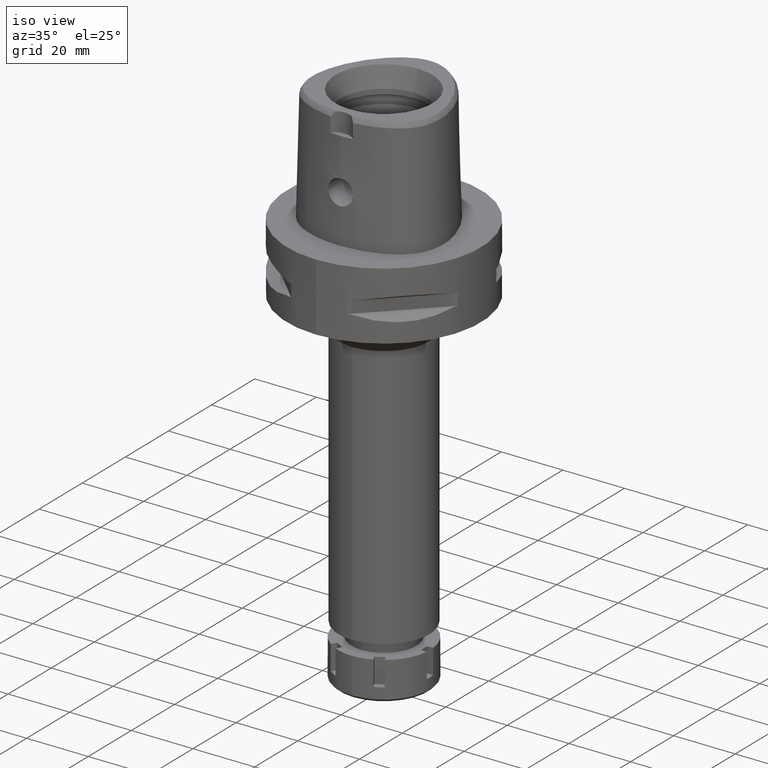
[diagram: clean part render]
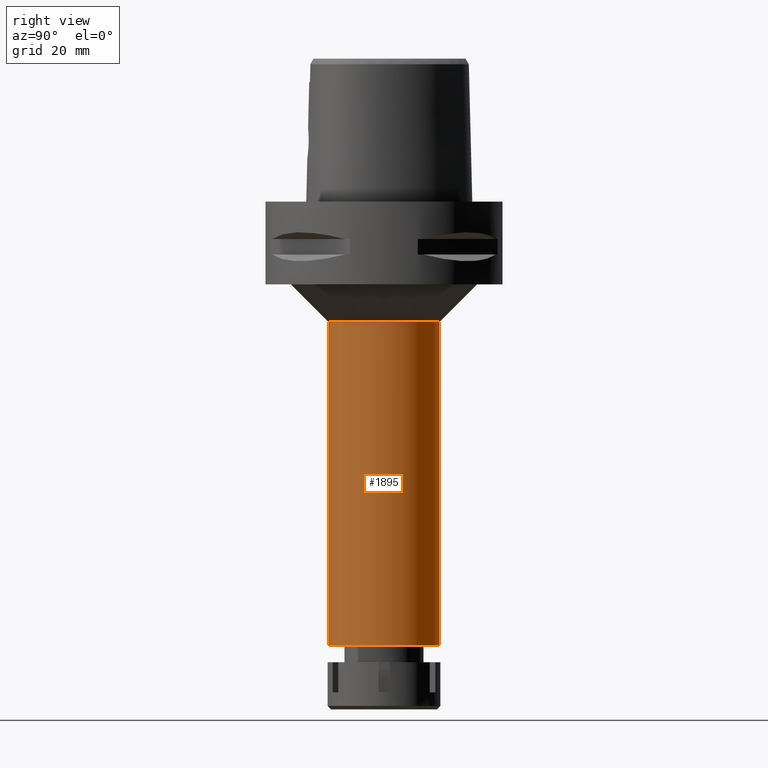
[diagram: tour spotlight — one face highlighted and labeled with its STEP entity id]
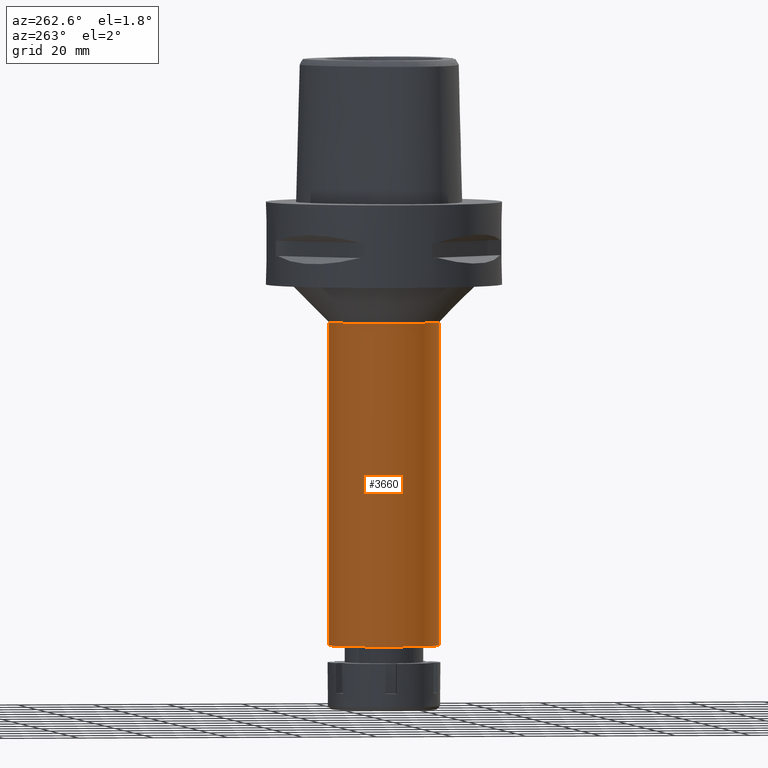
[diagram: tour spotlight — one face highlighted and labeled with its STEP entity id]
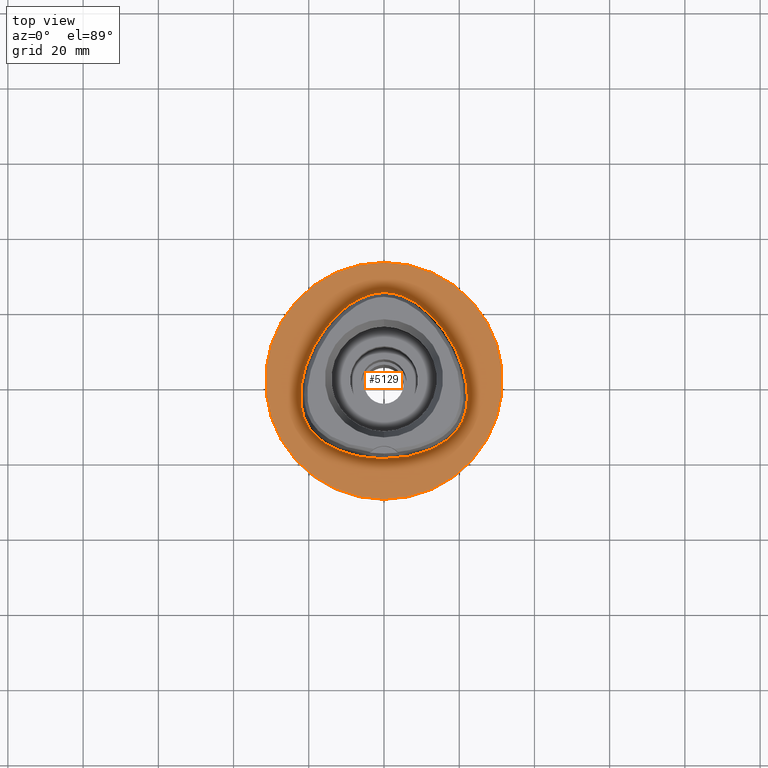
[diagram: tour spotlight — one face highlighted and labeled with its STEP entity id]
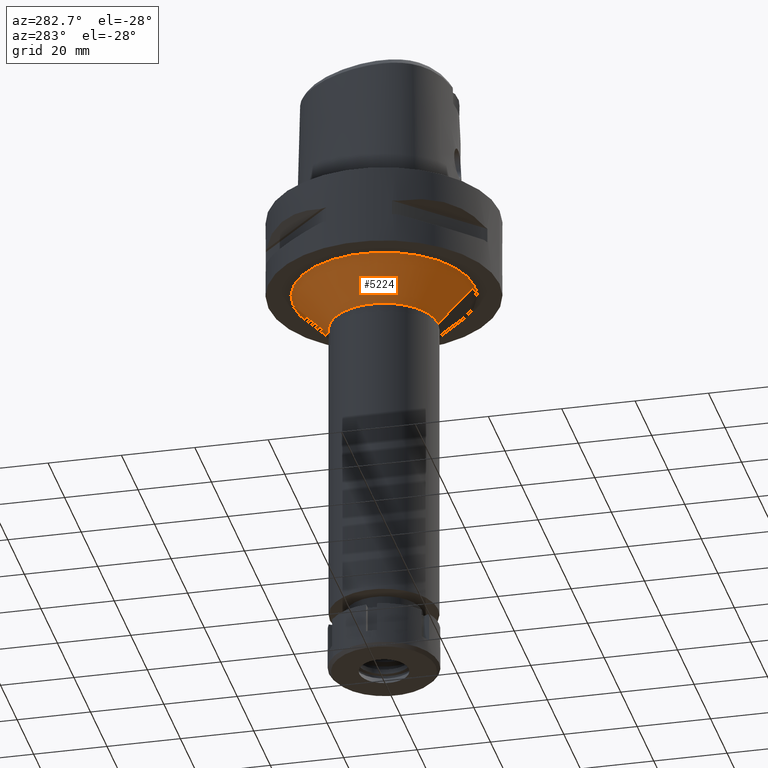
[diagram: tour spotlight — one face highlighted and labeled with its STEP entity id]
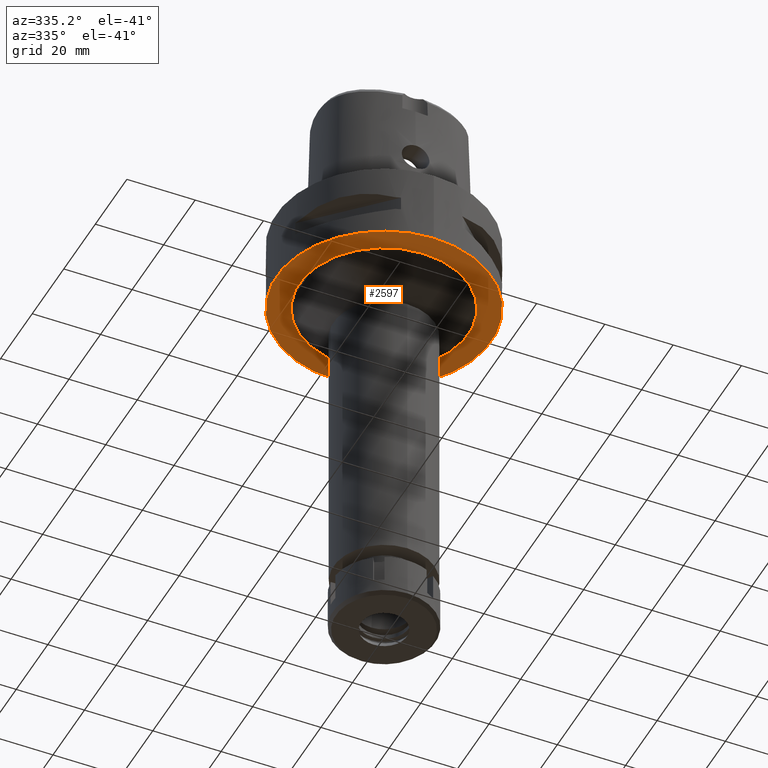
[diagram: tour spotlight — one face highlighted and labeled with its STEP entity id]
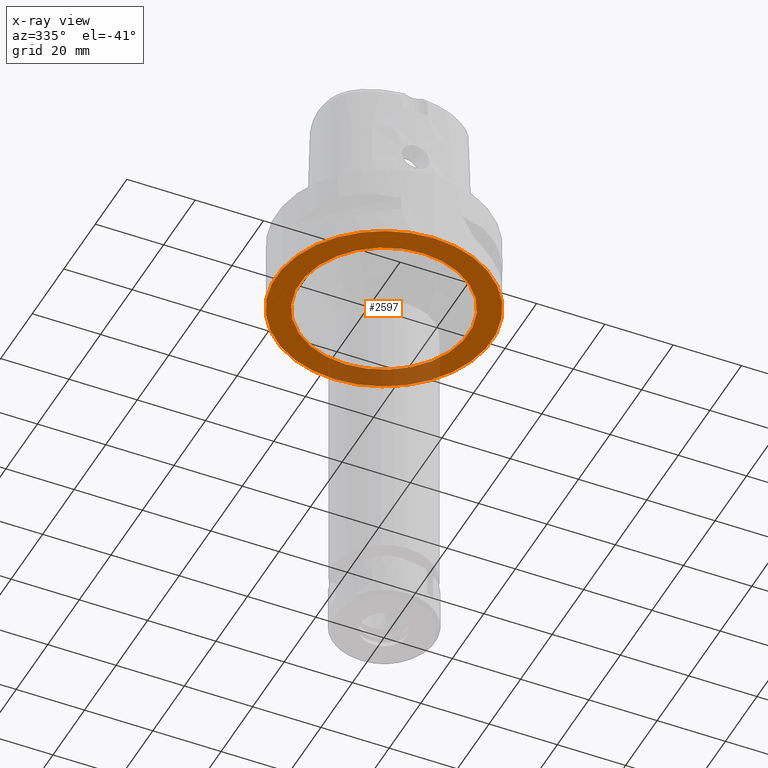
[diagram: x-ray of the same camera — body ghosted, this tour face saturated]
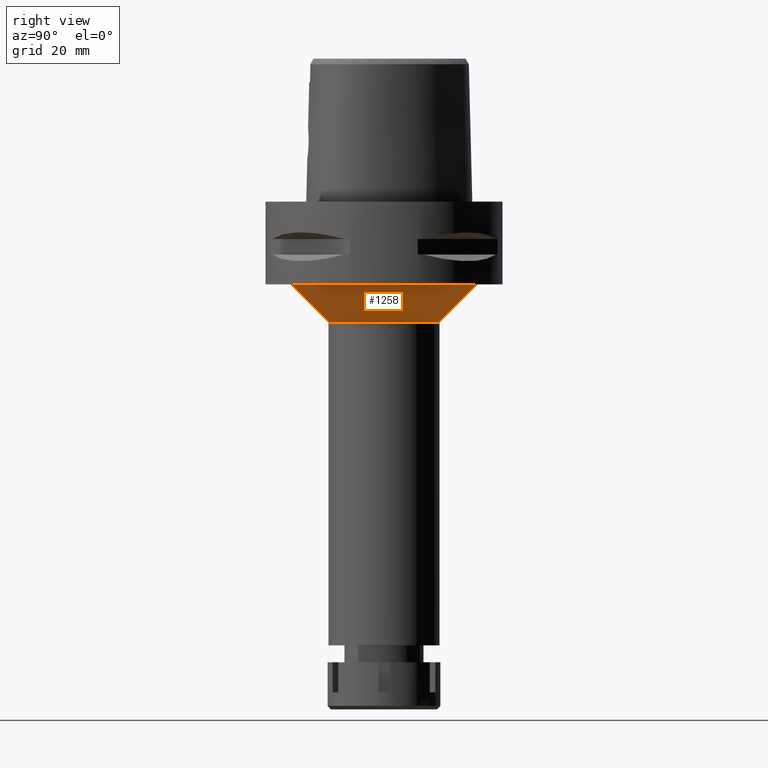
[diagram: tour spotlight — one face highlighted and labeled with its STEP entity id]
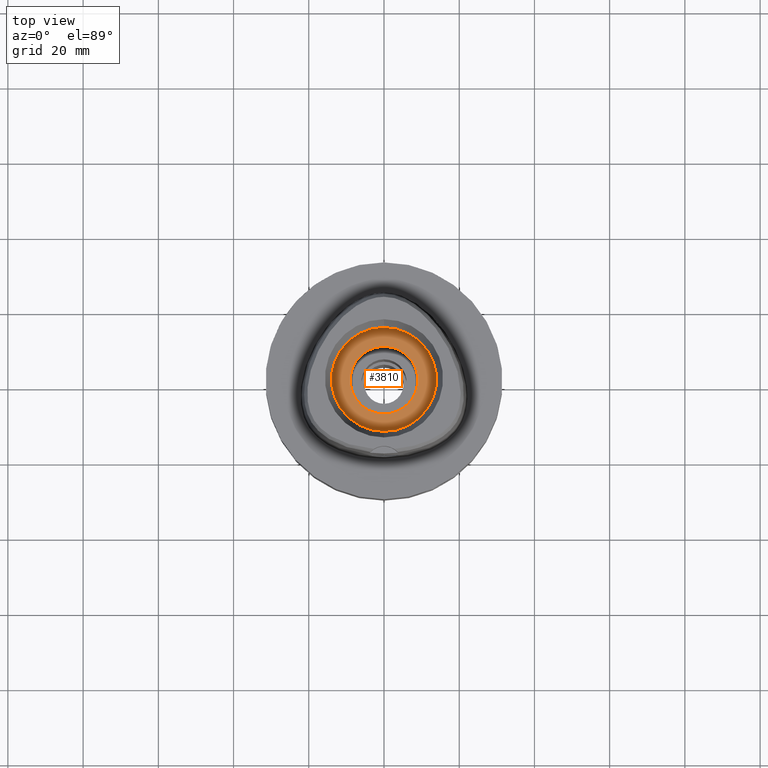
[diagram: tour spotlight — one face highlighted and labeled with its STEP entity id]
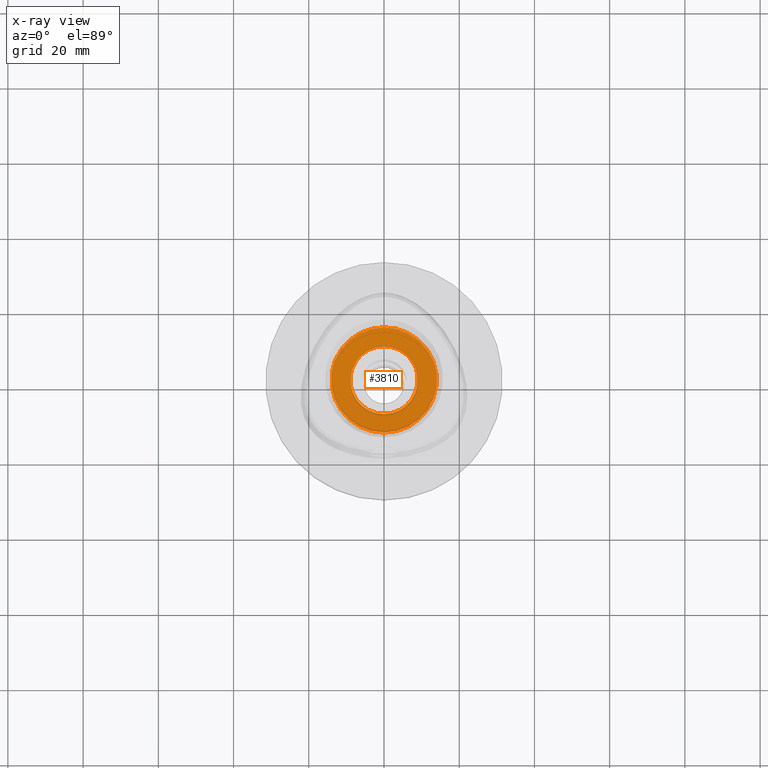
[diagram: x-ray of the same camera — body ghosted, this tour face saturated]
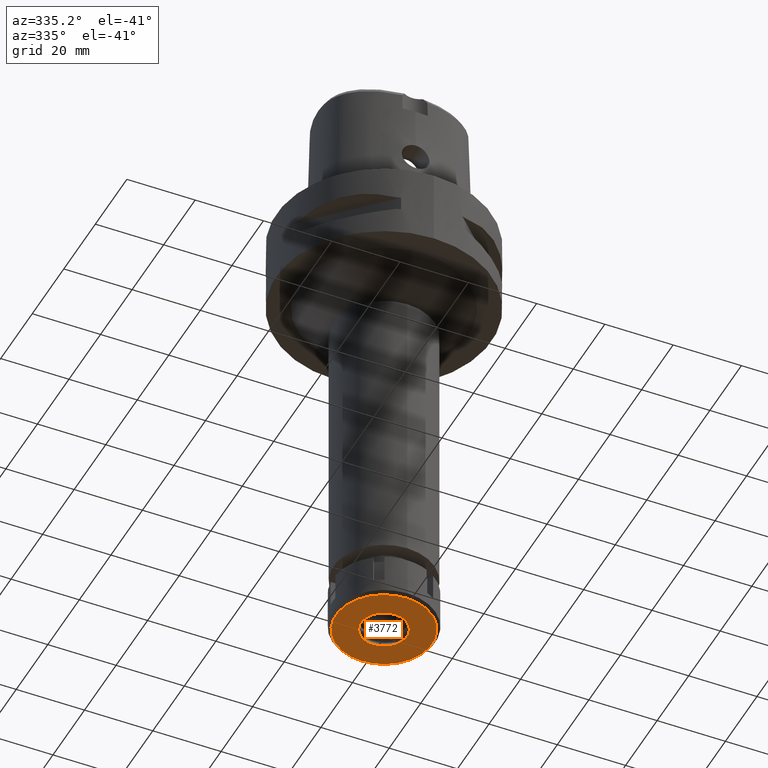
[diagram: tour spotlight — one face highlighted and labeled with its STEP entity id]
A machine part: a face-by-face anatomy tour. The part has 112 B-rep faces; the first image is the clean iso view, then the 8 largest visible faces are spotlighted one at a time (largest first), each with its STEP entity span.

Face 1 — right view, entity #1895. In plain terms, the highlighted cylindrical surface (partial cylindrical patch) has radius 14.75 mm, axis along (0, 0, -1).
Definition (entity closure, byte-faithful):
#50 = EDGE_CURVE ( 'NONE', #5499, #3742, #5460, .T. ) ;
#357 = CYLINDRICAL_SURFACE ( 'NONE', #2160, 14.75000000000000000 ) ;
#387 = CARTESIAN_POINT ( 'NONE',  ( 0.0000000000000000000, -14.75000000000000000, -32.00000000000000000 ) ) ;
#553 = EDGE_CURVE ( 'NONE', #2963, #5499, #3905, .T. ) ;
#792 = CARTESIAN_POINT ( 'NONE',  ( 0.0000000000000000000, 1.303024194292999954E-14, 6.400000000000000355 ) ) ;
#823 = CARTESIAN_POINT ( 'NONE',  ( 0.0000000000000000000, -14.75000000000000000, -32.00000000000000000 ) ) ;
#1055 = ORIENTED_EDGE ( 'NONE', *, *, #553, .T. ) ;
#1216 = CARTESIAN_POINT ( 'NONE',  ( 0.0000000000000000000, 14.75000000000000000, -32.00000000000000000 ) ) ;
#1250 = DIRECTION ( 'NONE',  ( 0.0000000000000000000, 0.0000000000000000000, -1.000000000000000000 ) ) ;
#1281 = DIRECTION ( 'NONE',  ( 0.0000000000000000000, 0.0000000000000000000, -1.000000000000000000 ) ) ;
#1881 = CARTESIAN_POINT ( 'NONE',  ( 0.0000000000000000000, 14.75000000000000000, -118.0000000000000000 ) ) ;
#1895 = ADVANCED_FACE ( 'NONE', ( #2055 ), #357, .T. ) ;
#1922 = ORIENTED_EDGE ( 'NONE', *, *, #50, .T. ) ;
#1946 = AXIS2_PLACEMENT_3D ( 'NONE', #2484, #1281, #2994 ) ;
#1980 = VECTOR ( 'NONE', #1250, 1000.000000000000000 ) ;
#2047 = VECTOR ( 'NONE', #4447, 1000.000000000000000 ) ;
#2055 = FACE_OUTER_BOUND ( 'NONE', #3492, .T. ) ;
#2160 = AXIS2_PLACEMENT_3D ( 'NONE', #792, #2988, #4644 ) ;
#2278 = CARTESIAN_POINT ( 'NONE',  ( 0.0000000000000000000, 14.75000000000000000, -32.00000000000000000 ) ) ;
#2484 = CARTESIAN_POINT ( 'NONE',  ( 0.0000000000000000000, 0.0000000000000000000, -32.00000000000000000 ) ) ;
#2963 = VERTEX_POINT ( 'NONE', #387 ) ;
#2988 = DIRECTION ( 'NONE',  ( 0.0000000000000000000, 0.0000000000000000000, -1.000000000000000000 ) ) ;
#2994 = DIRECTION ( 'NONE',  ( 0.0000000000000000000, 1.000000000000000000, 0.0000000000000000000 ) ) ;
#3243 = DIRECTION ( 'NONE',  ( 0.0000000000000000000, 0.0000000000000000000, 1.000000000000000000 ) ) ;
#3492 = EDGE_LOOP ( 'NONE', ( #4419, #1055, #1922, #3994 ) ) ;
#3505 = AXIS2_PLACEMENT_3D ( 'NONE', #5277, #3243, #5246 ) ;
#3742 = VERTEX_POINT ( 'NONE', #1881 ) ;
#3863 = VERTEX_POINT ( 'NONE', #1216 ) ;
#3905 = LINE ( 'NONE', #823, #1980 ) ;
#3994 = ORIENTED_EDGE ( 'NONE', *, *, #5535, .F. ) ;
#4288 = CIRCLE ( 'NONE', #1946, 14.75000000000000000 ) ;
#4419 = ORIENTED_EDGE ( 'NONE', *, *, #5127, .T. ) ;
#4447 = DIRECTION ( 'NONE',  ( 0.0000000000000000000, 0.0000000000000000000, -1.000000000000000000 ) ) ;
#4644 = DIRECTION ( 'NONE',  ( 0.0000000000000000000, -1.000000000000000000, 0.0000000000000000000 ) ) ;
#4832 = CARTESIAN_POINT ( 'NONE',  ( 0.0000000000000000000, -14.75000000000000000, -118.0000000000000000 ) ) ;
#4859 = LINE ( 'NONE', #2278, #2047 ) ;
#5127 = EDGE_CURVE ( 'NONE', #3863, #2963, #4288, .T. ) ;
#5246 = DIRECTION ( 'NONE',  ( 0.0000000000000000000, -1.000000000000000000, 0.0000000000000000000 ) ) ;
#5277 = CARTESIAN_POINT ( 'NONE',  ( 0.0000000000000000000, 1.303024194292999954E-14, -118.0000000000000000 ) ) ;
#5460 = CIRCLE ( 'NONE', #3505, 14.75000000000000000 ) ;
#5499 = VERTEX_POINT ( 'NONE', #4832 ) ;
#5535 = EDGE_CURVE ( 'NONE', #3863, #3742, #4859, .T. ) ;

Face 2 — auxiliary view, entity #3660. In plain terms, the highlighted cylindrical surface (partial cylindrical patch) has radius 14.75 mm, axis along (0, 0, -1).
Definition (entity closure, byte-faithful):
#234 = FACE_OUTER_BOUND ( 'NONE', #1100, .T. ) ;
#387 = CARTESIAN_POINT ( 'NONE',  ( 0.0000000000000000000, -14.75000000000000000, -32.00000000000000000 ) ) ;
#408 = DIRECTION ( 'NONE',  ( 0.0000000000000000000, 0.0000000000000000000, 1.000000000000000000 ) ) ;
#449 = EDGE_CURVE ( 'NONE', #3742, #5499, #1788, .T. ) ;
#484 = DIRECTION ( 'NONE',  ( 0.0000000000000000000, -1.000000000000000000, 0.0000000000000000000 ) ) ;
#533 = ORIENTED_EDGE ( 'NONE', *, *, #449, .T. ) ;
#553 = EDGE_CURVE ( 'NONE', #2963, #5499, #3905, .T. ) ;
#823 = CARTESIAN_POINT ( 'NONE',  ( 0.0000000000000000000, -14.75000000000000000, -32.00000000000000000 ) ) ;
#992 = ORIENTED_EDGE ( 'NONE', *, *, #2141, .T. ) ;
#1100 = EDGE_LOOP ( 'NONE', ( #533, #3059, #992, #4927 ) ) ;
#1128 = DIRECTION ( 'NONE',  ( 0.0000000000000000000, 0.0000000000000000000, -1.000000000000000000 ) ) ;
#1216 = CARTESIAN_POINT ( 'NONE',  ( 0.0000000000000000000, 14.75000000000000000, -32.00000000000000000 ) ) ;
#1250 = DIRECTION ( 'NONE',  ( 0.0000000000000000000, 0.0000000000000000000, -1.000000000000000000 ) ) ;
#1298 = DIRECTION ( 'NONE',  ( 0.0000000000000000000, 1.000000000000000000, 0.0000000000000000000 ) ) ;
#1317 = CARTESIAN_POINT ( 'NONE',  ( 0.0000000000000000000, 0.0000000000000000000, -32.00000000000000000 ) ) ;
#1788 = CIRCLE ( 'NONE', #4929, 14.75000000000000000 ) ;
#1881 = CARTESIAN_POINT ( 'NONE',  ( 0.0000000000000000000, 14.75000000000000000, -118.0000000000000000 ) ) ;
#1937 = CYLINDRICAL_SURFACE ( 'NONE', #4909, 14.75000000000000000 ) ;
#1980 = VECTOR ( 'NONE', #1250, 1000.000000000000000 ) ;
#2047 = VECTOR ( 'NONE', #4447, 1000.000000000000000 ) ;
#2141 = EDGE_CURVE ( 'NONE', #2963, #3863, #2490, .T. ) ;
#2278 = CARTESIAN_POINT ( 'NONE',  ( 0.0000000000000000000, 14.75000000000000000, -32.00000000000000000 ) ) ;
#2490 = CIRCLE ( 'NONE', #4112, 14.75000000000000000 ) ;
#2963 = VERTEX_POINT ( 'NONE', #387 ) ;
#3059 = ORIENTED_EDGE ( 'NONE', *, *, #553, .F. ) ;
#3660 = ADVANCED_FACE ( 'NONE', ( #234 ), #1937, .T. ) ;
#3742 = VERTEX_POINT ( 'NONE', #1881 ) ;
#3863 = VERTEX_POINT ( 'NONE', #1216 ) ;
#3864 = CARTESIAN_POINT ( 'NONE',  ( 0.0000000000000000000, 1.303024194292999954E-14, -118.0000000000000000 ) ) ;
#3903 = DIRECTION ( 'NONE',  ( 0.0000000000000000000, 0.0000000000000000000, -1.000000000000000000 ) ) ;
#3905 = LINE ( 'NONE', #823, #1980 ) ;
#4079 = CARTESIAN_POINT ( 'NONE',  ( 0.0000000000000000000, 1.303024194292999954E-14, 6.400000000000000355 ) ) ;
#4112 = AXIS2_PLACEMENT_3D ( 'NONE', #1317, #3903, #484 ) ;
#4447 = DIRECTION ( 'NONE',  ( 0.0000000000000000000, 0.0000000000000000000, -1.000000000000000000 ) ) ;
#4499 = DIRECTION ( 'NONE',  ( 0.0000000000000000000, -1.000000000000000000, 0.0000000000000000000 ) ) ;
#4832 = CARTESIAN_POINT ( 'NONE',  ( 0.0000000000000000000, -14.75000000000000000, -118.0000000000000000 ) ) ;
#4859 = LINE ( 'NONE', #2278, #2047 ) ;
#4909 = AXIS2_PLACEMENT_3D ( 'NONE', #4079, #1128, #4499 ) ;
#4927 = ORIENTED_EDGE ( 'NONE', *, *, #5535, .T. ) ;
#4929 = AXIS2_PLACEMENT_3D ( 'NONE', #3864, #408, #1298 ) ;
#5499 = VERTEX_POINT ( 'NONE', #4832 ) ;
#5535 = EDGE_CURVE ( 'NONE', #3863, #3742, #4859, .T. ) ;

Face 3 — top view, entity #5129. In plain terms, the highlighted planar face has unit normal (0, 0, -1).
Definition (entity closure, byte-faithful):
#28 = CARTESIAN_POINT ( 'NONE',  ( 0.0000000000000000000, -31.50000000000000000, 0.0000000000000000000 ) ) ;
#55 = VERTEX_POINT ( 'NONE', #2249 ) ;
#191 = EDGE_CURVE ( 'NONE', #2306, #355, #5034, .T. ) ;
#217 = CARTESIAN_POINT ( 'NONE',  ( -7.554234247045001308E-12, -20.67499999999999716, 5.943393925159998790E-14 ) ) ;
#228 = EDGE_LOOP ( 'NONE', ( #1629, #695 ) ) ;
#231 = EDGE_LOOP ( 'NONE', ( #2237, #4072 ) ) ;
#236 = CARTESIAN_POINT ( 'NONE',  ( 21.55524830777936529, -8.996025404796810676, -1.982772677002007239E-06 ) ) ;
#265 = CARTESIAN_POINT ( 'NONE',  ( -21.97832647186835331, -0.2810937510600225453, 2.423607632943622359E-07 ) ) ;
#298 = CARTESIAN_POINT ( 'NONE',  ( 5.098437035785714500, 22.52602543684452385, -1.982772677002007239E-06 ) ) ;
#349 = DIRECTION ( 'NONE',  ( 0.0000000000000000000, -1.000000000000000000, 0.0000000000000000000 ) ) ;
#355 = VERTEX_POINT ( 'NONE', #440 ) ;
#359 = CARTESIAN_POINT ( 'NONE',  ( 4.563474861933999607E-11, 23.47499999999000053, 5.643633708511000158E-14 ) ) ;
#440 = CARTESIAN_POINT ( 'NONE',  ( 4.563474861933999607E-11, 23.47499999999000053, 5.643633708511000158E-14 ) ) ;
#528 = CARTESIAN_POINT ( 'NONE',  ( 14.67337966880801758, -17.21410160570154702, -1.982772677002007239E-06 ) ) ;
#558 = CARTESIAN_POINT ( 'NONE',  ( 18.56841068752517643, -14.16937991701447963, -1.982772677002007239E-06 ) ) ;
#597 = CIRCLE ( 'NONE', #1254, 31.50000000000000000 ) ;
#610 = CARTESIAN_POINT ( 'NONE',  ( -6.341471018134833493, -20.29812499400877712, 2.423607632943622359E-07 ) ) ;
#673 = CARTESIAN_POINT ( 'NONE',  ( 22.05732879250008693, -6.847636725831053539, -1.982772677002007239E-06 ) ) ;
#695 = ORIENTED_EDGE ( 'NONE', *, *, #191, .F. ) ;
#705 = CARTESIAN_POINT ( 'NONE',  ( -14.40795638492536135, 15.64093749606614381, 2.423607632943622359E-07 ) ) ;
#736 = CARTESIAN_POINT ( 'NONE',  ( -22.24453907246621753, -4.100468750035296317, 2.423607632943622359E-07 ) ) ;
#880 = CIRCLE ( 'NONE', #2404, 31.50000000000000000 ) ;
#986 = CARTESIAN_POINT ( 'NONE',  ( 11.23259758430813626, -18.89324223433851202, -1.982772677002007239E-06 ) ) ;
#1014 = CARTESIAN_POINT ( 'NONE',  ( -19.64947365372702492, -12.82525390268285470, 2.423607632943622359E-07 ) ) ;
#1038 = CARTESIAN_POINT ( 'NONE',  ( -2.113823672704807866, -20.67499999394337706, 2.423607632943622359E-07 ) ) ;
#1254 = AXIS2_PLACEMENT_3D ( 'NONE', #4050, #1818, #4417 ) ;
#1547 = CARTESIAN_POINT ( 'NONE',  ( -2.564517725711242591, 23.29328124403344091, 2.423607632943622359E-07 ) ) ;
#1629 = ORIENTED_EDGE ( 'NONE', *, *, #3662, .F. ) ;
#1768 = CARTESIAN_POINT ( 'NONE',  ( -22.05732873719482967, -6.847636717884158841, 2.423607632943622359E-07 ) ) ;
#1795 = CARTESIAN_POINT ( 'NONE',  ( -7.554234247045001308E-12, -20.67499999999999716, 5.943393925159998790E-14 ) ) ;
#1818 = DIRECTION ( 'NONE',  ( 0.0000000000000000000, 0.0000000000000000000, -1.000000000000000000 ) ) ;
#1847 = CARTESIAN_POINT ( 'NONE',  ( -16.95889172217054863, -15.67838866708667567, 2.423607632943622359E-07 ) ) ;
#1970 = CARTESIAN_POINT ( 'NONE',  ( -0.8548392418743139265, 23.47499999394298342, 2.423607632943622359E-07 ) ) ;
#2062 = FACE_OUTER_BOUND ( 'NONE', #231, .T. ) ;
#2237 = ORIENTED_EDGE ( 'NONE', *, *, #3776, .F. ) ;
#2245 = CARTESIAN_POINT ( 'NONE',  ( -20.34961798031779168, -11.74885741883554680, 2.423607632943622359E-07 ) ) ;
#2249 = CARTESIAN_POINT ( 'NONE',  ( 0.0000000000000000000, 31.50000000000000000, 0.0000000000000000000 ) ) ;
#2306 = VERTEX_POINT ( 'NONE', #217 ) ;
#2404 = AXIS2_PLACEMENT_3D ( 'NONE', #4222, #2556, #349 ) ;
#2425 = CARTESIAN_POINT ( 'NONE',  ( -20.74942740306294553, 4.657187497934072162, 2.423607632943622359E-07 ) ) ;
#2453 = CARTESIAN_POINT ( 'NONE',  ( -18.06826687999996750, 10.43171874696322732, 2.423607632943622359E-07 ) ) ;
#2511 = CARTESIAN_POINT ( 'NONE',  ( 19.64947369879755712, -12.82525393544401027, -1.982772677002007239E-06 ) ) ;
#2556 = DIRECTION ( 'NONE',  ( 0.0000000000000000000, 0.0000000000000000000, -1.000000000000000000 ) ) ;
#2645 = CARTESIAN_POINT ( 'NONE',  ( -21.55524825426159907, -8.996025388892533670, 2.423607632943622359E-07 ) ) ;
#2675 = CARTESIAN_POINT ( 'NONE',  ( 2.113823676014076280, -20.67500004956444926, -1.982772677002007239E-06 ) ) ;
#2844 = CARTESIAN_POINT ( 'NONE',  ( 20.34961802856998148, -11.74885744669750665, -1.982772677002007239E-06 ) ) ;
#2887 = PLANE ( 'NONE',  #3218 ) ;
#3091 = VERTEX_POINT ( 'NONE', #28 ) ;
#3155 = CARTESIAN_POINT ( 'NONE',  ( -20.93173251657169232, -10.60431640378334350, 2.423607632943622359E-07 ) ) ;
#3218 = AXIS2_PLACEMENT_3D ( 'NONE', #5505, #4682, #4704 ) ;
#3265 = CARTESIAN_POINT ( 'NONE',  ( -7.571159431281500929, 21.31457030725399449, 2.423607632943622359E-07 ) ) ;
#3267 = CARTESIAN_POINT ( 'NONE',  ( 0.8548392458207098032, 23.47500004957299424, -1.982772677002007239E-06 ) ) ;
#3456 = EDGE_CURVE ( 'NONE', #3091, #55, #880, .T. ) ;
#3662 = EDGE_CURVE ( 'NONE', #355, #2306, #4706, .T. ) ;
#3669 = CARTESIAN_POINT ( 'NONE',  ( -7.554234247045001308E-12, -20.67499999999999716, 5.943393925159998790E-14 ) ) ;
#3776 = EDGE_CURVE ( 'NONE', #55, #3091, #597, .T. ) ;
#3816 = CARTESIAN_POINT ( 'NONE',  ( 20.93173256748282185, -10.60431642644196515, -1.982772677002007239E-06 ) ) ;
#4021 = CARTESIAN_POINT ( 'NONE',  ( -18.56841064701205113, -14.16937987863448711, 2.423607632943622359E-07 ) ) ;
#4050 = CARTESIAN_POINT ( 'NONE',  ( 0.0000000000000000000, 1.303024194292999954E-14, 0.0000000000000000000 ) ) ;
#4072 = ORIENTED_EDGE ( 'NONE', *, *, #3456, .F. ) ;
#4114 = CARTESIAN_POINT ( 'NONE',  ( 18.06826692841348247, 10.43171877491243471, -1.982772677002007239E-06 ) ) ;
#4199 = CARTESIAN_POINT ( 'NONE',  ( 7.571159459464015029, 21.31457035541280121, -1.982772677002007239E-06 ) ) ;
#4222 = CARTESIAN_POINT ( 'NONE',  ( 0.0000000000000000000, 1.303024194292999954E-14, 0.0000000000000000000 ) ) ;
#4230 = CARTESIAN_POINT ( 'NONE',  ( 10.74572894263694600, 19.17433597566731152, -1.982772677002007239E-06 ) ) ;
#4393 = CARTESIAN_POINT ( 'NONE',  ( 6.341471028019424416, -20.29812504906901793, -1.982772677002007662E-06 ) ) ;
#4417 = DIRECTION ( 'NONE',  ( 0.0000000000000000000, 1.000000000000000000, 0.0000000000000000000 ) ) ;
#4420 = CARTESIAN_POINT ( 'NONE',  ( 16.95889175670987115, -15.67838871100898857, -1.982772677002007239E-06 ) ) ;
#4593 = CARTESIAN_POINT ( 'NONE',  ( -5.098437015021700880, 22.52602538498401685, 2.423607632943622359E-07 ) ) ;
#4595 = CARTESIAN_POINT ( 'NONE',  ( 22.24453912826682611, -4.100468749708466198, -1.982772677002007239E-06 ) ) ;
#4682 = DIRECTION ( 'NONE',  ( 0.0000000000000000000, 0.0000000000000000000, -1.000000000000000000 ) ) ;
#4704 = DIRECTION ( 'NONE',  ( 0.0000000000000000000, -1.000000000000000000, 0.0000000000000000000 ) ) ;
#4706 = B_SPLINE_CURVE_WITH_KNOTS ( 'NONE', 3,
 ( #5360, #1970, #1547, #4593, #3265, #4970, #705, #2453, #2425, #265, #736, #1768, #2645, #3155, #2245, #1014, #4021, #1847, #4881, #5219, #610, #1038, #1795 ),
 .UNSPECIFIED., .F., .F.,
 ( 4, 1, 1, 1, 1, 1, 1, 1, 1, 1, 1, 1, 1, 1, 1, 1, 1, 1, 1, 1, 4 ),
 ( 0.0000000000000000000, 0.04166666666736999758, 0.08333333333399001175, 0.1250000000005999923, 0.1666666666673000119, 0.2500000000004999889, 0.3333333333337000215, 0.4166666666670000296, 0.5000000000002999823, 0.5416666666668999985, 0.5833333333335000148, 0.6250000000001000311, 0.6458333333333999837, 0.6666666666667999674, 0.6875000000001000311, 0.7083333333333000637, 0.7500000000000000000, 0.7916666666667000474, 0.8333333333332000326, 0.9166666666664999852, 1.000000000000000000 ),
 .UNSPECIFIED. ) ;
#4881 = CARTESIAN_POINT ( 'NONE',  ( -14.67337964118345184, -17.21410155721954638, 2.423607632943622359E-07 ) ) ;
#4970 = CARTESIAN_POINT ( 'NONE',  ( -10.74572890667418967, 19.17433593283710636, 2.423607632943622359E-07 ) ) ;
#4998 = CARTESIAN_POINT ( 'NONE',  ( 21.97832652694652822, -0.2810937413278584707, -1.982772677002007239E-06 ) ) ;
#5007 = FACE_BOUND ( 'NONE', #228, .T. ) ;
#5034 = B_SPLINE_CURVE_WITH_KNOTS ( 'NONE', 3,
 ( #3669, #2675, #4393, #986, #528, #4420, #558, #2511, #2844, #3816, #236, #673, #4595, #4998, #5391, #4114, #5500, #4230, #4199, #298, #5416, #3267, #359 ),
 .UNSPECIFIED., .F., .F.,
 ( 4, 1, 1, 1, 1, 1, 1, 1, 1, 1, 1, 1, 1, 1, 1, 1, 1, 1, 1, 1, 4 ),
 ( 0.0000000000000000000, 0.08333333333339000559, 0.1666666666667000196, 0.2083333333333000081, 0.2500000000000000000, 0.2916666666666999919, 0.3125000000000000000, 0.3333333333333000081, 0.3541666666666000163, 0.3749999999998999689, 0.4166666666666000163, 0.4583333333332000326, 0.4999999999998999689, 0.5833333333331000015, 0.6666666666664999852, 0.7499999999998000488, 0.8333333333329999704, 0.8749999999997000177, 0.9166666666664000651, 0.9583333333329999704, 1.000000000000000000 ),
 .UNSPECIFIED. ) ;
#5129 = ADVANCED_FACE ( 'NONE', ( #2062, #5007 ), #2887, .F. ) ;
#5219 = CARTESIAN_POINT ( 'NONE',  ( -11.23259756519374619, -18.89324218178149195, 2.423607632943622359E-07 ) ) ;
#5360 = CARTESIAN_POINT ( 'NONE',  ( 4.563474861933999607E-11, 23.47499999999000053, 5.643633708511000158E-14 ) ) ;
#5391 = CARTESIAN_POINT ( 'NONE',  ( 20.74942745569203950, 4.657187516900237689, -1.982772677002007239E-06 ) ) ;
#5416 = CARTESIAN_POINT ( 'NONE',  ( 2.564517737144718978, 23.29328129881112730, -1.982772677002007239E-06 ) ) ;
#5500 = CARTESIAN_POINT ( 'NONE',  ( 14.40795642766266660, 15.64093753216525329, -1.982772677002007239E-06 ) ) ;
#5505 = CARTESIAN_POINT ( 'NONE',  ( 0.0000000000000000000, 1.224646799146999965E-14, 0.0000000000000000000 ) ) ;

Face 4 — auxiliary view, entity #5224. In plain terms, the highlighted conical surface has half-angle 45 deg.
Definition (entity closure, byte-faithful):
#30 = DIRECTION ( 'NONE',  ( 0.0000000000000000000, 0.0000000000000000000, -1.000000000000000000 ) ) ;
#304 = FACE_OUTER_BOUND ( 'NONE', #2434, .T. ) ;
#387 = CARTESIAN_POINT ( 'NONE',  ( 0.0000000000000000000, -14.75000000000000000, -32.00000000000000000 ) ) ;
#416 = CONICAL_SURFACE ( 'NONE', #498, 19.75000000000000000, 0.7853981633972997312 ) ;
#484 = DIRECTION ( 'NONE',  ( 0.0000000000000000000, -1.000000000000000000, 0.0000000000000000000 ) ) ;
#498 = AXIS2_PLACEMENT_3D ( 'NONE', #3363, #2032, #3762 ) ;
#906 = CARTESIAN_POINT ( 'NONE',  ( 0.0000000000000000000, -24.75000000000000000, -22.00000000000000000 ) ) ;
#927 = LINE ( 'NONE', #906, #2204 ) ;
#1004 = CARTESIAN_POINT ( 'NONE',  ( 0.0000000000000000000, 24.75000000000000000, -22.00000000000000000 ) ) ;
#1216 = CARTESIAN_POINT ( 'NONE',  ( 0.0000000000000000000, 14.75000000000000000, -32.00000000000000000 ) ) ;
#1279 = DIRECTION ( 'NONE',  ( 0.0000000000000000000, -1.000000000000000000, 0.0000000000000000000 ) ) ;
#1317 = CARTESIAN_POINT ( 'NONE',  ( 0.0000000000000000000, 0.0000000000000000000, -32.00000000000000000 ) ) ;
#1371 = EDGE_CURVE ( 'NONE', #1582, #4151, #4142, .T. ) ;
#1563 = CARTESIAN_POINT ( 'NONE',  ( 0.0000000000000000000, 24.75000000000000000, -22.00000000000000000 ) ) ;
#1582 = VERTEX_POINT ( 'NONE', #3722 ) ;
#1636 = ORIENTED_EDGE ( 'NONE', *, *, #1371, .T. ) ;
#1712 = AXIS2_PLACEMENT_3D ( 'NONE', #3908, #30, #1279 ) ;
#1801 = DIRECTION ( 'NONE',  ( 0.0000000000000000000, 0.7071067811865474617, -0.7071067811865474617 ) ) ;
#1810 = LINE ( 'NONE', #1004, #3658 ) ;
#1995 = ORIENTED_EDGE ( 'NONE', *, *, #4094, .T. ) ;
#2032 = DIRECTION ( 'NONE',  ( 0.0000000000000000000, 0.0000000000000000000, 1.000000000000000000 ) ) ;
#2141 = EDGE_CURVE ( 'NONE', #2963, #3863, #2490, .T. ) ;
#2204 = VECTOR ( 'NONE', #1801, 1000.000000000000114 ) ;
#2434 = EDGE_LOOP ( 'NONE', ( #2960, #3182, #1636, #1995 ) ) ;
#2490 = CIRCLE ( 'NONE', #4112, 14.75000000000000000 ) ;
#2662 = DIRECTION ( 'NONE',  ( 0.0000000000000000000, -0.7071067811865474617, -0.7071067811865474617 ) ) ;
#2960 = ORIENTED_EDGE ( 'NONE', *, *, #2141, .F. ) ;
#2963 = VERTEX_POINT ( 'NONE', #387 ) ;
#3182 = ORIENTED_EDGE ( 'NONE', *, *, #4540, .F. ) ;
#3363 = CARTESIAN_POINT ( 'NONE',  ( 0.0000000000000000000, 0.0000000000000000000, -27.00000000000000000 ) ) ;
#3658 = VECTOR ( 'NONE', #2662, 1000.000000000000114 ) ;
#3722 = CARTESIAN_POINT ( 'NONE',  ( 0.0000000000000000000, -24.75000000000000000, -22.00000000000000000 ) ) ;
#3762 = DIRECTION ( 'NONE',  ( 0.0000000000000000000, 1.000000000000000000, 0.0000000000000000000 ) ) ;
#3863 = VERTEX_POINT ( 'NONE', #1216 ) ;
#3903 = DIRECTION ( 'NONE',  ( 0.0000000000000000000, 0.0000000000000000000, -1.000000000000000000 ) ) ;
#3908 = CARTESIAN_POINT ( 'NONE',  ( 0.0000000000000000000, 0.0000000000000000000, -22.00000000000000000 ) ) ;
#4094 = EDGE_CURVE ( 'NONE', #4151, #3863, #1810, .T. ) ;
#4112 = AXIS2_PLACEMENT_3D ( 'NONE', #1317, #3903, #484 ) ;
#4142 = CIRCLE ( 'NONE', #1712, 24.75000000000000000 ) ;
#4151 = VERTEX_POINT ( 'NONE', #1563 ) ;
#4540 = EDGE_CURVE ( 'NONE', #1582, #2963, #927, .T. ) ;
#5224 = ADVANCED_FACE ( 'NONE', ( #304 ), #416, .T. ) ;

Face 5 — auxiliary view, entity #2597. An x-ray twin of the same camera follows (body ghosted, this face saturated) — the face is partly hidden behind the body. In plain terms, the highlighted planar face has unit normal (0, 0, -1).
Definition (entity closure, byte-faithful):
#2 = CARTESIAN_POINT ( 'NONE',  ( 0.0000000000000000000, -31.50000000000000000, -22.00000000000000000 ) ) ;
#30 = DIRECTION ( 'NONE',  ( 0.0000000000000000000, 0.0000000000000000000, -1.000000000000000000 ) ) ;
#45 = CARTESIAN_POINT ( 'NONE',  ( 0.0000000000000000000, 1.303024194292999954E-14, -22.00000000000000000 ) ) ;
#79 = EDGE_CURVE ( 'NONE', #4151, #1582, #3943, .T. ) ;
#98 = DIRECTION ( 'NONE',  ( 0.0000000000000000000, 0.0000000000000000000, 1.000000000000000000 ) ) ;
#330 = DIRECTION ( 'NONE',  ( 0.0000000000000000000, 0.0000000000000000000, -1.000000000000000000 ) ) ;
#620 = CARTESIAN_POINT ( 'NONE',  ( 0.0000000000000000000, 1.303024194292999954E-14, -22.00000000000000000 ) ) ;
#674 = FACE_OUTER_BOUND ( 'NONE', #681, .T. ) ;
#681 = EDGE_LOOP ( 'NONE', ( #3349, #3668 ) ) ;
#764 = DIRECTION ( 'NONE',  ( 0.0000000000000000000, -1.000000000000000000, 0.0000000000000000000 ) ) ;
#870 = CIRCLE ( 'NONE', #4008, 31.50000000000000000 ) ;
#889 = EDGE_LOOP ( 'NONE', ( #4885, #3807 ) ) ;
#955 = AXIS2_PLACEMENT_3D ( 'NONE', #2457, #330, #764 ) ;
#1045 = DIRECTION ( 'NONE',  ( 0.0000000000000000000, 0.0000000000000000000, 1.000000000000000000 ) ) ;
#1075 = PLANE ( 'NONE',  #955 ) ;
#1279 = DIRECTION ( 'NONE',  ( 0.0000000000000000000, -1.000000000000000000, 0.0000000000000000000 ) ) ;
#1371 = EDGE_CURVE ( 'NONE', #1582, #4151, #4142, .T. ) ;
#1524 = AXIS2_PLACEMENT_3D ( 'NONE', #1912, #2276, #3638 ) ;
#1563 = CARTESIAN_POINT ( 'NONE',  ( 0.0000000000000000000, 24.75000000000000000, -22.00000000000000000 ) ) ;
#1582 = VERTEX_POINT ( 'NONE', #3722 ) ;
#1712 = AXIS2_PLACEMENT_3D ( 'NONE', #3908, #30, #1279 ) ;
#1912 = CARTESIAN_POINT ( 'NONE',  ( 0.0000000000000000000, 0.0000000000000000000, -22.00000000000000000 ) ) ;
#1943 = CIRCLE ( 'NONE', #4893, 31.50000000000000000 ) ;
#2026 = VERTEX_POINT ( 'NONE', #2 ) ;
#2276 = DIRECTION ( 'NONE',  ( 0.0000000000000000000, 0.0000000000000000000, -1.000000000000000000 ) ) ;
#2287 = VERTEX_POINT ( 'NONE', #3687 ) ;
#2376 = EDGE_CURVE ( 'NONE', #2026, #2287, #870, .T. ) ;
#2457 = CARTESIAN_POINT ( 'NONE',  ( 0.0000000000000000000, 0.0000000000000000000, -22.00000000000000000 ) ) ;
#2597 = ADVANCED_FACE ( 'NONE', ( #674, #3244 ), #1075, .T. ) ;
#3244 = FACE_BOUND ( 'NONE', #889, .T. ) ;
#3349 = ORIENTED_EDGE ( 'NONE', *, *, #4756, .F. ) ;
#3458 = DIRECTION ( 'NONE',  ( 0.0000000000000000000, -1.000000000000000000, 0.0000000000000000000 ) ) ;
#3638 = DIRECTION ( 'NONE',  ( 0.0000000000000000000, 1.000000000000000000, 0.0000000000000000000 ) ) ;
#3668 = ORIENTED_EDGE ( 'NONE', *, *, #2376, .F. ) ;
#3687 = CARTESIAN_POINT ( 'NONE',  ( 0.0000000000000000000, 31.50000000000000000, -22.00000000000000000 ) ) ;
#3722 = CARTESIAN_POINT ( 'NONE',  ( 0.0000000000000000000, -24.75000000000000000, -22.00000000000000000 ) ) ;
#3807 = ORIENTED_EDGE ( 'NONE', *, *, #1371, .F. ) ;
#3908 = CARTESIAN_POINT ( 'NONE',  ( 0.0000000000000000000, 0.0000000000000000000, -22.00000000000000000 ) ) ;
#3943 = CIRCLE ( 'NONE', #1524, 24.75000000000000000 ) ;
#4008 = AXIS2_PLACEMENT_3D ( 'NONE', #45, #98, #3458 ) ;
#4142 = CIRCLE ( 'NONE', #1712, 24.75000000000000000 ) ;
#4151 = VERTEX_POINT ( 'NONE', #1563 ) ;
#4425 = DIRECTION ( 'NONE',  ( 0.0000000000000000000, 1.000000000000000000, 0.0000000000000000000 ) ) ;
#4756 = EDGE_CURVE ( 'NONE', #2287, #2026, #1943, .T. ) ;
#4885 = ORIENTED_EDGE ( 'NONE', *, *, #79, .F. ) ;
#4893 = AXIS2_PLACEMENT_3D ( 'NONE', #620, #1045, #4425 ) ;

Face 6 — right view, entity #1258. In plain terms, the highlighted conical surface has half-angle 45 deg.
Definition (entity closure, byte-faithful):
#79 = EDGE_CURVE ( 'NONE', #4151, #1582, #3943, .T. ) ;
#387 = CARTESIAN_POINT ( 'NONE',  ( 0.0000000000000000000, -14.75000000000000000, -32.00000000000000000 ) ) ;
#442 = DIRECTION ( 'NONE',  ( 0.0000000000000000000, 0.0000000000000000000, 1.000000000000000000 ) ) ;
#720 = AXIS2_PLACEMENT_3D ( 'NONE', #872, #442, #2213 ) ;
#872 = CARTESIAN_POINT ( 'NONE',  ( 0.0000000000000000000, 0.0000000000000000000, -27.00000000000000000 ) ) ;
#906 = CARTESIAN_POINT ( 'NONE',  ( 0.0000000000000000000, -24.75000000000000000, -22.00000000000000000 ) ) ;
#927 = LINE ( 'NONE', #906, #2204 ) ;
#1004 = CARTESIAN_POINT ( 'NONE',  ( 0.0000000000000000000, 24.75000000000000000, -22.00000000000000000 ) ) ;
#1216 = CARTESIAN_POINT ( 'NONE',  ( 0.0000000000000000000, 14.75000000000000000, -32.00000000000000000 ) ) ;
#1258 = ADVANCED_FACE ( 'NONE', ( #1693 ), #4236, .T. ) ;
#1281 = DIRECTION ( 'NONE',  ( 0.0000000000000000000, 0.0000000000000000000, -1.000000000000000000 ) ) ;
#1524 = AXIS2_PLACEMENT_3D ( 'NONE', #1912, #2276, #3638 ) ;
#1563 = CARTESIAN_POINT ( 'NONE',  ( 0.0000000000000000000, 24.75000000000000000, -22.00000000000000000 ) ) ;
#1582 = VERTEX_POINT ( 'NONE', #3722 ) ;
#1693 = FACE_OUTER_BOUND ( 'NONE', #1897, .T. ) ;
#1801 = DIRECTION ( 'NONE',  ( 0.0000000000000000000, 0.7071067811865474617, -0.7071067811865474617 ) ) ;
#1810 = LINE ( 'NONE', #1004, #3658 ) ;
#1897 = EDGE_LOOP ( 'NONE', ( #3527, #5111, #3969, #5138 ) ) ;
#1912 = CARTESIAN_POINT ( 'NONE',  ( 0.0000000000000000000, 0.0000000000000000000, -22.00000000000000000 ) ) ;
#1946 = AXIS2_PLACEMENT_3D ( 'NONE', #2484, #1281, #2994 ) ;
#2204 = VECTOR ( 'NONE', #1801, 1000.000000000000114 ) ;
#2213 = DIRECTION ( 'NONE',  ( 0.0000000000000000000, 1.000000000000000000, 0.0000000000000000000 ) ) ;
#2276 = DIRECTION ( 'NONE',  ( 0.0000000000000000000, 0.0000000000000000000, -1.000000000000000000 ) ) ;
#2484 = CARTESIAN_POINT ( 'NONE',  ( 0.0000000000000000000, 0.0000000000000000000, -32.00000000000000000 ) ) ;
#2662 = DIRECTION ( 'NONE',  ( 0.0000000000000000000, -0.7071067811865474617, -0.7071067811865474617 ) ) ;
#2963 = VERTEX_POINT ( 'NONE', #387 ) ;
#2994 = DIRECTION ( 'NONE',  ( 0.0000000000000000000, 1.000000000000000000, 0.0000000000000000000 ) ) ;
#3527 = ORIENTED_EDGE ( 'NONE', *, *, #79, .T. ) ;
#3638 = DIRECTION ( 'NONE',  ( 0.0000000000000000000, 1.000000000000000000, 0.0000000000000000000 ) ) ;
#3658 = VECTOR ( 'NONE', #2662, 1000.000000000000114 ) ;
#3722 = CARTESIAN_POINT ( 'NONE',  ( 0.0000000000000000000, -24.75000000000000000, -22.00000000000000000 ) ) ;
#3863 = VERTEX_POINT ( 'NONE', #1216 ) ;
#3943 = CIRCLE ( 'NONE', #1524, 24.75000000000000000 ) ;
#3969 = ORIENTED_EDGE ( 'NONE', *, *, #5127, .F. ) ;
#4094 = EDGE_CURVE ( 'NONE', #4151, #3863, #1810, .T. ) ;
#4151 = VERTEX_POINT ( 'NONE', #1563 ) ;
#4236 = CONICAL_SURFACE ( 'NONE', #720, 19.75000000000000000, 0.7853981633972997312 ) ;
#4288 = CIRCLE ( 'NONE', #1946, 14.75000000000000000 ) ;
#4540 = EDGE_CURVE ( 'NONE', #1582, #2963, #927, .T. ) ;
#5111 = ORIENTED_EDGE ( 'NONE', *, *, #4540, .T. ) ;
#5127 = EDGE_CURVE ( 'NONE', #3863, #2963, #4288, .T. ) ;
#5138 = ORIENTED_EDGE ( 'NONE', *, *, #4094, .F. ) ;

Face 7 — top view, entity #3810. An x-ray twin of the same camera follows (body ghosted, this face saturated) — the face is partly hidden behind the body. In plain terms, the highlighted planar face has unit normal (0, 0, -1).
Definition (entity closure, byte-faithful):
#140 = CARTESIAN_POINT ( 'NONE',  ( 0.0000000000000000000, -9.000000000000000000, 11.00000000000000000 ) ) ;
#215 = AXIS2_PLACEMENT_3D ( 'NONE', #4973, #1196, #2787 ) ;
#218 = VERTEX_POINT ( 'NONE', #4563 ) ;
#422 = CIRCLE ( 'NONE', #3676, 9.000000000000000000 ) ;
#516 = DIRECTION ( 'NONE',  ( 0.0000000000000000000, 0.0000000000000000000, -1.000000000000000000 ) ) ;
#921 = DIRECTION ( 'NONE',  ( 0.0000000000000000000, -1.000000000000000000, 0.0000000000000000000 ) ) ;
#1050 = CIRCLE ( 'NONE', #3849, 9.000000000000000000 ) ;
#1117 = CARTESIAN_POINT ( 'NONE',  ( 0.0000000000000000000, -14.00000000000000000, 11.00000000000000000 ) ) ;
#1156 = AXIS2_PLACEMENT_3D ( 'NONE', #4772, #2272, #921 ) ;
#1196 = DIRECTION ( 'NONE',  ( 0.0000000000000000000, 0.0000000000000000000, -1.000000000000000000 ) ) ;
#1411 = AXIS2_PLACEMENT_3D ( 'NONE', #3902, #516, #2691 ) ;
#2272 = DIRECTION ( 'NONE',  ( 0.0000000000000000000, 0.0000000000000000000, -1.000000000000000000 ) ) ;
#2396 = CIRCLE ( 'NONE', #1411, 14.00000000000000000 ) ;
#2502 = ORIENTED_EDGE ( 'NONE', *, *, #3488, .F. ) ;
#2668 = CIRCLE ( 'NONE', #215, 14.00000000000000000 ) ;
#2677 = CARTESIAN_POINT ( 'NONE',  ( 0.0000000000000000000, 0.0000000000000000000, 11.00000000000000000 ) ) ;
#2691 = DIRECTION ( 'NONE',  ( 0.0000000000000000000, -1.000000000000000000, 0.0000000000000000000 ) ) ;
#2700 = PLANE ( 'NONE',  #1156 ) ;
#2716 = ORIENTED_EDGE ( 'NONE', *, *, #2717, .F. ) ;
#2717 = EDGE_CURVE ( 'NONE', #3184, #4173, #2668, .T. ) ;
#2787 = DIRECTION ( 'NONE',  ( 0.0000000000000000000, 1.000000000000000000, 0.0000000000000000000 ) ) ;
#2921 = ORIENTED_EDGE ( 'NONE', *, *, #4104, .F. ) ;
#3184 = VERTEX_POINT ( 'NONE', #3259 ) ;
#3259 = CARTESIAN_POINT ( 'NONE',  ( 0.0000000000000000000, 14.00000000000000000, 11.00000000000000000 ) ) ;
#3488 = EDGE_CURVE ( 'NONE', #218, #3749, #422, .T. ) ;
#3633 = EDGE_LOOP ( 'NONE', ( #2921, #2716 ) ) ;
#3676 = AXIS2_PLACEMENT_3D ( 'NONE', #5465, #4639, #4670 ) ;
#3700 = EDGE_LOOP ( 'NONE', ( #4663, #2502 ) ) ;
#3749 = VERTEX_POINT ( 'NONE', #140 ) ;
#3810 = ADVANCED_FACE ( 'NONE', ( #5304, #4828 ), #2700, .F. ) ;
#3849 = AXIS2_PLACEMENT_3D ( 'NONE', #2677, #4798, #4395 ) ;
#3902 = CARTESIAN_POINT ( 'NONE',  ( 0.0000000000000000000, 0.0000000000000000000, 11.00000000000000000 ) ) ;
#4104 = EDGE_CURVE ( 'NONE', #4173, #3184, #2396, .T. ) ;
#4173 = VERTEX_POINT ( 'NONE', #1117 ) ;
#4395 = DIRECTION ( 'NONE',  ( 0.0000000000000000000, -1.000000000000000000, 0.0000000000000000000 ) ) ;
#4563 = CARTESIAN_POINT ( 'NONE',  ( 0.0000000000000000000, 9.000000000000000000, 11.00000000000000000 ) ) ;
#4639 = DIRECTION ( 'NONE',  ( 0.0000000000000000000, 0.0000000000000000000, 1.000000000000000000 ) ) ;
#4663 = ORIENTED_EDGE ( 'NONE', *, *, #5290, .F. ) ;
#4670 = DIRECTION ( 'NONE',  ( 0.0000000000000000000, 1.000000000000000000, 0.0000000000000000000 ) ) ;
#4772 = CARTESIAN_POINT ( 'NONE',  ( 0.0000000000000000000, 0.0000000000000000000, 11.00000000000000000 ) ) ;
#4798 = DIRECTION ( 'NONE',  ( 0.0000000000000000000, 0.0000000000000000000, 1.000000000000000000 ) ) ;
#4828 = FACE_BOUND ( 'NONE', #3700, .T. ) ;
#4973 = CARTESIAN_POINT ( 'NONE',  ( 0.0000000000000000000, 0.0000000000000000000, 11.00000000000000000 ) ) ;
#5290 = EDGE_CURVE ( 'NONE', #3749, #218, #1050, .T. ) ;
#5304 = FACE_OUTER_BOUND ( 'NONE', #3633, .T. ) ;
#5465 = CARTESIAN_POINT ( 'NONE',  ( 0.0000000000000000000, 0.0000000000000000000, 11.00000000000000000 ) ) ;

Face 8 — auxiliary view, entity #3772. In plain terms, the highlighted planar face has unit normal (0, 0, -1).
Definition (entity closure, byte-faithful):
#39 = CIRCLE ( 'NONE', #3116, 6.750000000000000000 ) ;
#60 = FACE_BOUND ( 'NONE', #5041, .T. ) ;
#87 = CARTESIAN_POINT ( 'NONE',  ( 0.0000000000000000000, 0.0000000000000000000, -12.50000000000000000 ) ) ;
#100 = ORIENTED_EDGE ( 'NONE', *, *, #961, .F. ) ;
#252 = DIRECTION ( 'NONE',  ( 0.0000000000000000000, 1.000000000000000000, 0.0000000000000000000 ) ) ;
#266 = VERTEX_POINT ( 'NONE', #1575 ) ;
#360 = DIRECTION ( 'NONE',  ( 0.0000000000000000000, -1.000000000000000000, 0.0000000000000000000 ) ) ;
#535 = AXIS2_PLACEMENT_3D ( 'NONE', #2415, #5022, #4191 ) ;
#743 = EDGE_CURVE ( 'NONE', #1207, #1836, #820, .T. ) ;
#795 = CARTESIAN_POINT ( 'NONE',  ( 0.0000000000000000000, 0.0000000000000000000, -12.50000000000000000 ) ) ;
#820 = CIRCLE ( 'NONE', #2071, 14.09999999999999964 ) ;
#961 = EDGE_CURVE ( 'NONE', #1836, #1207, #1982, .T. ) ;
#977 = CARTESIAN_POINT ( 'NONE',  ( 0.0000000000000000000, 0.0000000000000000000, -12.50000000000000000 ) ) ;
#1207 = VERTEX_POINT ( 'NONE', #1942 ) ;
#1248 = CARTESIAN_POINT ( 'NONE',  ( 0.0000000000000000000, 6.750000000000000000, -12.50000000000000000 ) ) ;
#1275 = CARTESIAN_POINT ( 'NONE',  ( 0.0000000000000000000, -14.09999999999999964, -12.50000000000000000 ) ) ;
#1368 = FACE_OUTER_BOUND ( 'NONE', #1938, .T. ) ;
#1575 = CARTESIAN_POINT ( 'NONE',  ( 0.0000000000000000000, -6.750000000000000000, -12.50000000000000000 ) ) ;
#1836 = VERTEX_POINT ( 'NONE', #1275 ) ;
#1840 = VERTEX_POINT ( 'NONE', #1248 ) ;
#1938 = EDGE_LOOP ( 'NONE', ( #4424, #100 ) ) ;
#1942 = CARTESIAN_POINT ( 'NONE',  ( 0.0000000000000000000, 14.09999999999999964, -12.50000000000000000 ) ) ;
#1982 = CIRCLE ( 'NONE', #535, 14.09999999999999964 ) ;
#2071 = AXIS2_PLACEMENT_3D ( 'NONE', #977, #4013, #2696 ) ;
#2415 = CARTESIAN_POINT ( 'NONE',  ( 0.0000000000000000000, 0.0000000000000000000, -12.50000000000000000 ) ) ;
#2696 = DIRECTION ( 'NONE',  ( 0.0000000000000000000, 1.000000000000000000, 0.0000000000000000000 ) ) ;
#2911 = EDGE_CURVE ( 'NONE', #266, #1840, #39, .T. ) ;
#3065 = DIRECTION ( 'NONE',  ( 0.0000000000000000000, -1.000000000000000000, 0.0000000000000000000 ) ) ;
#3107 = AXIS2_PLACEMENT_3D ( 'NONE', #4545, #4488, #252 ) ;
#3116 = AXIS2_PLACEMENT_3D ( 'NONE', #795, #4231, #360 ) ;
#3448 = ORIENTED_EDGE ( 'NONE', *, *, #2911, .F. ) ;
#3525 = DIRECTION ( 'NONE',  ( 0.0000000000000000000, 0.0000000000000000000, -1.000000000000000000 ) ) ;
#3772 = ADVANCED_FACE ( 'NONE', ( #1368, #60 ), #4471, .T. ) ;
#4013 = DIRECTION ( 'NONE',  ( 0.0000000000000000000, 0.0000000000000000000, 1.000000000000000000 ) ) ;
#4191 = DIRECTION ( 'NONE',  ( 0.0000000000000000000, -1.000000000000000000, 0.0000000000000000000 ) ) ;
#4231 = DIRECTION ( 'NONE',  ( 0.0000000000000000000, 0.0000000000000000000, -1.000000000000000000 ) ) ;
#4246 = EDGE_CURVE ( 'NONE', #1840, #266, #4803, .T. ) ;
#4424 = ORIENTED_EDGE ( 'NONE', *, *, #743, .F. ) ;
#4471 = PLANE ( 'NONE',  #5449 ) ;
#4488 = DIRECTION ( 'NONE',  ( 0.0000000000000000000, 0.0000000000000000000, -1.000000000000000000 ) ) ;
#4545 = CARTESIAN_POINT ( 'NONE',  ( 0.0000000000000000000, 0.0000000000000000000, -12.50000000000000000 ) ) ;
#4803 = CIRCLE ( 'NONE', #3107, 6.750000000000000000 ) ;
#4948 = ORIENTED_EDGE ( 'NONE', *, *, #4246, .F. ) ;
#5022 = DIRECTION ( 'NONE',  ( 0.0000000000000000000, 0.0000000000000000000, 1.000000000000000000 ) ) ;
#5041 = EDGE_LOOP ( 'NONE', ( #4948, #3448 ) ) ;
#5449 = AXIS2_PLACEMENT_3D ( 'NONE', #87, #3525, #3065 ) ;